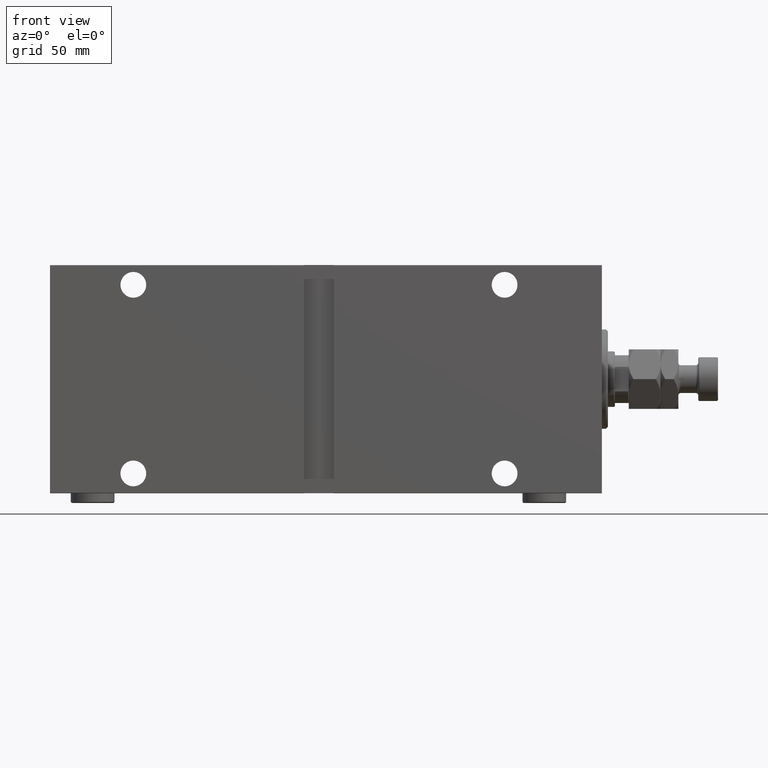
[diagram: clean part render]
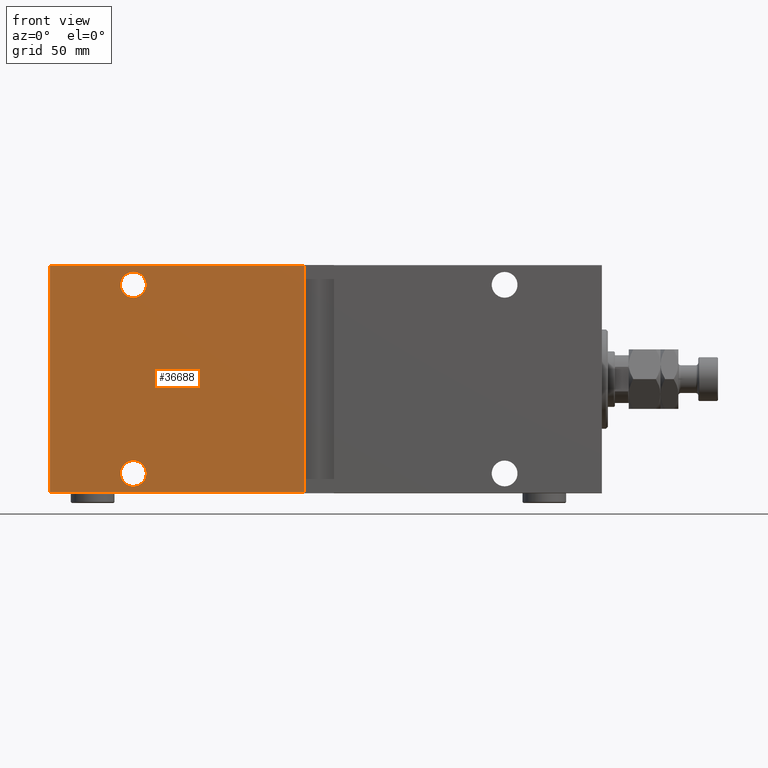
[diagram: same view with one face highlighted and labeled with its STEP entity id]
A machine part, front view. The second image highlights one B-rep face of the part: STEP entity #36688.
In plain terms, the highlighted planar face has unit normal (0, 1, 0).
Its self-contained STEP definition (entity closure, byte-faithful):
#311 = EDGE_CURVE ( 'NONE', #39664, #6066, #4812, .T. ) ;
#672 = VECTOR ( 'NONE', #31293, 1000.000000000000000 ) ;
#1589 = EDGE_CURVE ( 'NONE', #20410, #36036, #37081, .T. ) ;
#3670 = CARTESIAN_POINT ( 'NONE',  ( 236.0000000000000000, 45.00000000000002132, 40.99999999999997868 ) ) ;
#4314 = DIRECTION ( 'NONE',  ( 0.000000000000000000, 0.000000000000000000, -1.000000000000000000 ) ) ;
#4812 = LINE ( 'NONE', #5509, #13917 ) ;
#5413 = ORIENTED_EDGE ( 'NONE', *, *, #311, .F. ) ;
#5509 = CARTESIAN_POINT ( 'NONE',  ( 150.0000000000000284, 45.00000000000002132, -57.50000000000000711 ) ) ;
#5526 = CARTESIAN_POINT ( 'NONE',  ( 278.0000000000000000, 45.00000000000001421, 57.19999999999996021 ) ) ;
#6066 = VERTEX_POINT ( 'NONE', #24321 ) ;
#6382 = EDGE_CURVE ( 'NONE', #20410, #6066, #17500, .T. ) ;
#6531 = DIRECTION ( 'NONE',  ( 0.000000000000000000, 0.000000000000000000, -1.000000000000000000 ) ) ;
#6764 = CARTESIAN_POINT ( 'NONE',  ( 236.0000000000000568, 45.00000000000000711, -47.50000000000000711 ) ) ;
#7789 = EDGE_LOOP ( 'NONE', ( #10896, #8420 ) ) ;
#8020 = AXIS2_PLACEMENT_3D ( 'NONE', #34318, #41541, #9412 ) ;
#8420 = ORIENTED_EDGE ( 'NONE', *, *, #26625, .T. ) ;
#8907 = DIRECTION ( 'NONE',  ( 0.000000000000000000, 0.000000000000000000, 1.000000000000000000 ) ) ;
#8921 = DIRECTION ( 'NONE',  ( 0.000000000000000000, -0.000000000000000000, -1.000000000000000000 ) ) ;
#9412 = DIRECTION ( 'NONE',  ( 0.000000000000000000, 0.000000000000000000, -1.000000000000000000 ) ) ;
#10235 = VECTOR ( 'NONE', #8907, 1000.000000000000000 ) ;
#10896 = ORIENTED_EDGE ( 'NONE', *, *, #37664, .T. ) ;
#11004 = EDGE_LOOP ( 'NONE', ( #19224, #43256 ) ) ;
#11084 = DIRECTION ( 'NONE',  ( 0.000000000000000000, -1.000000000000000000, 0.000000000000000000 ) ) ;
#12356 = CARTESIAN_POINT ( 'NONE',  ( 278.0000000000000000, 45.00000000000001421, -57.20000000000001705 ) ) ;
#12491 = EDGE_CURVE ( 'NONE', #45120, #38333, #23787, .T. ) ;
#12544 = ORIENTED_EDGE ( 'NONE', *, *, #1589, .F. ) ;
#12633 = FACE_BOUND ( 'NONE', #11004, .T. ) ;
#13917 = VECTOR ( 'NONE', #29957, 1000.000000000000000 ) ;
#14718 = EDGE_LOOP ( 'NONE', ( #12544, #19747, #5413, #41379 ) ) ;
#15009 = AXIS2_PLACEMENT_3D ( 'NONE', #6764, #38435, #6531 ) ;
#15775 = CIRCLE ( 'NONE', #15009, 6.500000000000012434 ) ;
#16223 = VERTEX_POINT ( 'NONE', #18175 ) ;
#16358 = DIRECTION ( 'NONE',  ( 0.000000000000000000, -1.000000000000000000, 0.000000000000000000 ) ) ;
#17500 = LINE ( 'NONE', #34285, #34800 ) ;
#18175 = CARTESIAN_POINT ( 'NONE',  ( 236.0000000000000000, 45.00000000000002132, 54.00000000000001421 ) ) ;
#18593 = AXIS2_PLACEMENT_3D ( 'NONE', #23349, #16358, #36864 ) ;
#19224 = ORIENTED_EDGE ( 'NONE', *, *, #42565, .T. ) ;
#19747 = ORIENTED_EDGE ( 'NONE', *, *, #6382, .T. ) ;
#20324 = CARTESIAN_POINT ( 'NONE',  ( 278.0000000000000000, 45.00000000000001421, 57.19999999999998863 ) ) ;
#20410 = VERTEX_POINT ( 'NONE', #12356 ) ;
#22089 = CARTESIAN_POINT ( 'NONE',  ( 236.0000000000000568, 45.00000000000000711, -54.00000000000002132 ) ) ;
#23091 = CARTESIAN_POINT ( 'NONE',  ( 278.0000000000000000, 45.00000000000001421, -57.50000000000000711 ) ) ;
#23349 = CARTESIAN_POINT ( 'NONE',  ( 236.0000000000000000, 45.00000000000002132, 47.50000000000000000 ) ) ;
#23787 = CIRCLE ( 'NONE', #34968, 6.500000000000012434 ) ;
#23815 = AXIS2_PLACEMENT_3D ( 'NONE', #40807, #26829, #8921 ) ;
#24039 = DIRECTION ( 'NONE',  ( -1.000000000000000000, 0.000000000000000000, 0.000000000000000000 ) ) ;
#24321 = CARTESIAN_POINT ( 'NONE',  ( 150.0000000000000284, 45.00000000000002132, -57.20000000000001705 ) ) ;
#26161 = VERTEX_POINT ( 'NONE', #3670 ) ;
#26586 = PLANE ( 'NONE',  #23815 ) ;
#26625 = EDGE_CURVE ( 'NONE', #26161, #16223, #38515, .T. ) ;
#26829 = DIRECTION ( 'NONE',  ( 0.000000000000000000, -1.000000000000000000, 0.000000000000000000 ) ) ;
#27779 = LINE ( 'NONE', #20324, #672 ) ;
#29957 = DIRECTION ( 'NONE',  ( -0.000000000000000000, 1.206764157201257045E-16, -1.000000000000000000 ) ) ;
#30098 = FACE_BOUND ( 'NONE', #7789, .T. ) ;
#31293 = DIRECTION ( 'NONE',  ( 1.000000000000000000, 0.000000000000000000, 0.000000000000000000 ) ) ;
#34285 = CARTESIAN_POINT ( 'NONE',  ( 278.0000000000000000, 45.00000000000001421, -57.20000000000001705 ) ) ;
#34318 = CARTESIAN_POINT ( 'NONE',  ( 236.0000000000000000, 45.00000000000002132, 47.50000000000000000 ) ) ;
#34425 = EDGE_CURVE ( 'NONE', #39664, #36036, #27779, .T. ) ;
#34800 = VECTOR ( 'NONE', #24039, 1000.000000000000000 ) ;
#34968 = AXIS2_PLACEMENT_3D ( 'NONE', #36218, #11084, #4314 ) ;
#36036 = VERTEX_POINT ( 'NONE', #5526 ) ;
#36218 = CARTESIAN_POINT ( 'NONE',  ( 236.0000000000000568, 45.00000000000000711, -47.50000000000000711 ) ) ;
#36688 = ADVANCED_FACE ( 'NONE', ( #12633, #30098, #44294 ), #26586, .F. ) ;
#36864 = DIRECTION ( 'NONE',  ( 0.000000000000000000, 0.000000000000000000, -1.000000000000000000 ) ) ;
#37081 = LINE ( 'NONE', #23091, #10235 ) ;
#37664 = EDGE_CURVE ( 'NONE', #16223, #26161, #38723, .T. ) ;
#38333 = VERTEX_POINT ( 'NONE', #45554 ) ;
#38435 = DIRECTION ( 'NONE',  ( 0.000000000000000000, -1.000000000000000000, 0.000000000000000000 ) ) ;
#38515 = CIRCLE ( 'NONE', #8020, 6.500000000000019540 ) ;
#38723 = CIRCLE ( 'NONE', #18593, 6.500000000000019540 ) ;
#39664 = VERTEX_POINT ( 'NONE', #43151 ) ;
#40807 = CARTESIAN_POINT ( 'NONE',  ( 278.0000000000000000, 45.00000000000001421, -57.50000000000000711 ) ) ;
#41379 = ORIENTED_EDGE ( 'NONE', *, *, #34425, .T. ) ;
#41541 = DIRECTION ( 'NONE',  ( 0.000000000000000000, -1.000000000000000000, 0.000000000000000000 ) ) ;
#42565 = EDGE_CURVE ( 'NONE', #38333, #45120, #15775, .T. ) ;
#43151 = CARTESIAN_POINT ( 'NONE',  ( 150.0000000000000284, 45.00000000000000711, 57.19999999999998863 ) ) ;
#43256 = ORIENTED_EDGE ( 'NONE', *, *, #12491, .T. ) ;
#44294 = FACE_OUTER_BOUND ( 'NONE', #14718, .T. ) ;
#45120 = VERTEX_POINT ( 'NONE', #22089 ) ;
#45554 = CARTESIAN_POINT ( 'NONE',  ( 236.0000000000000568, 45.00000000000000711, -40.99999999999999289 ) ) ;